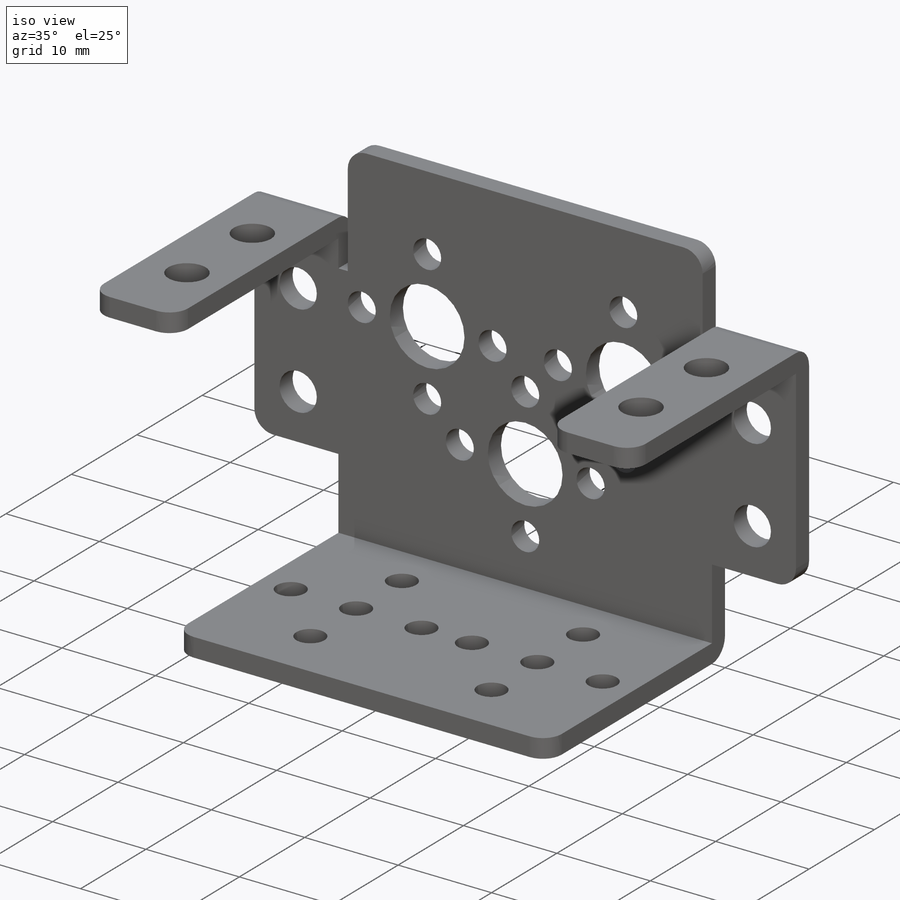
[diagram: iso view]
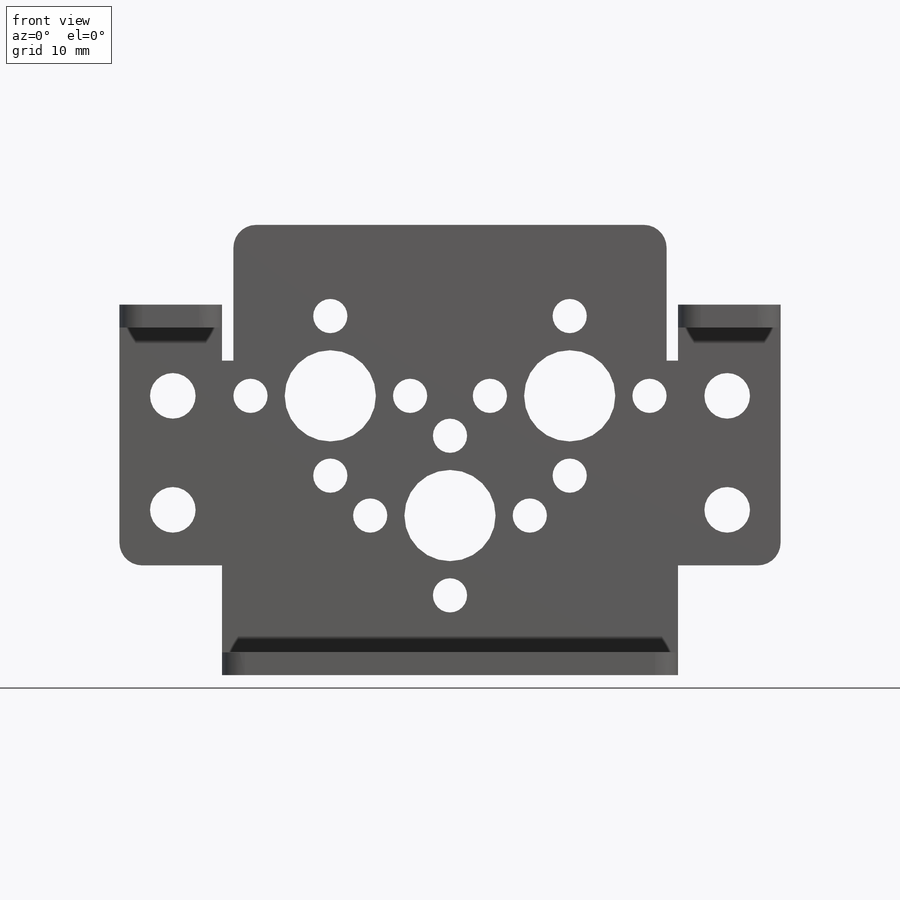
[diagram: front view]
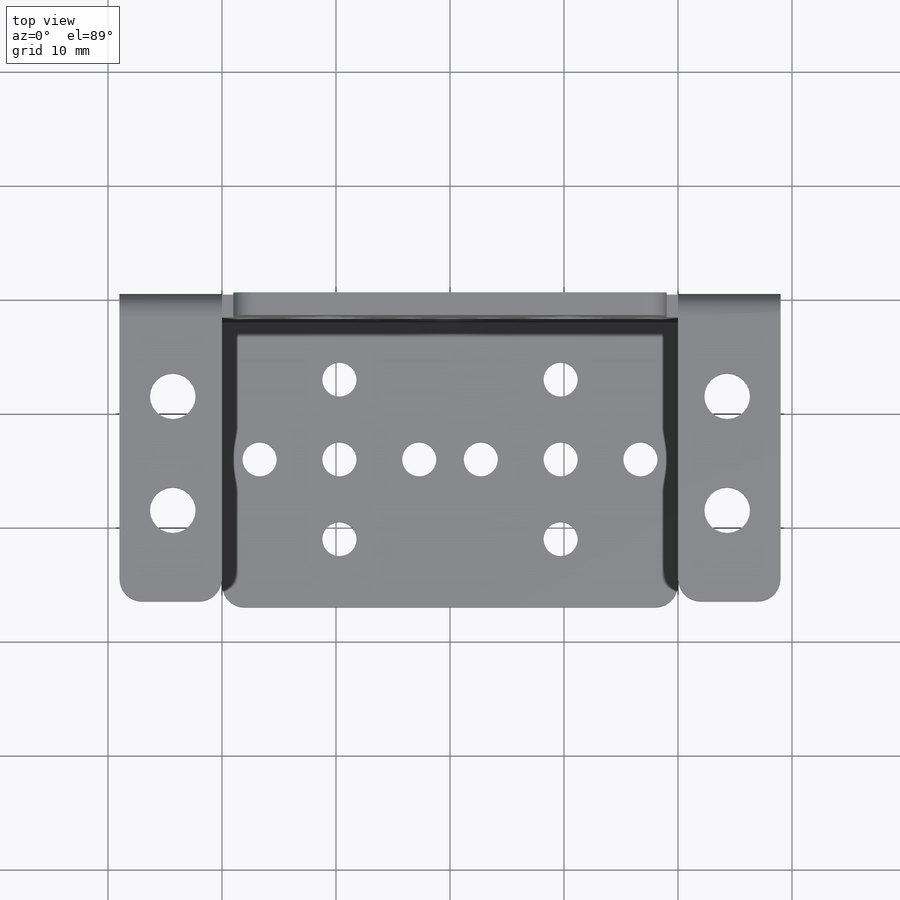
[diagram: top view]
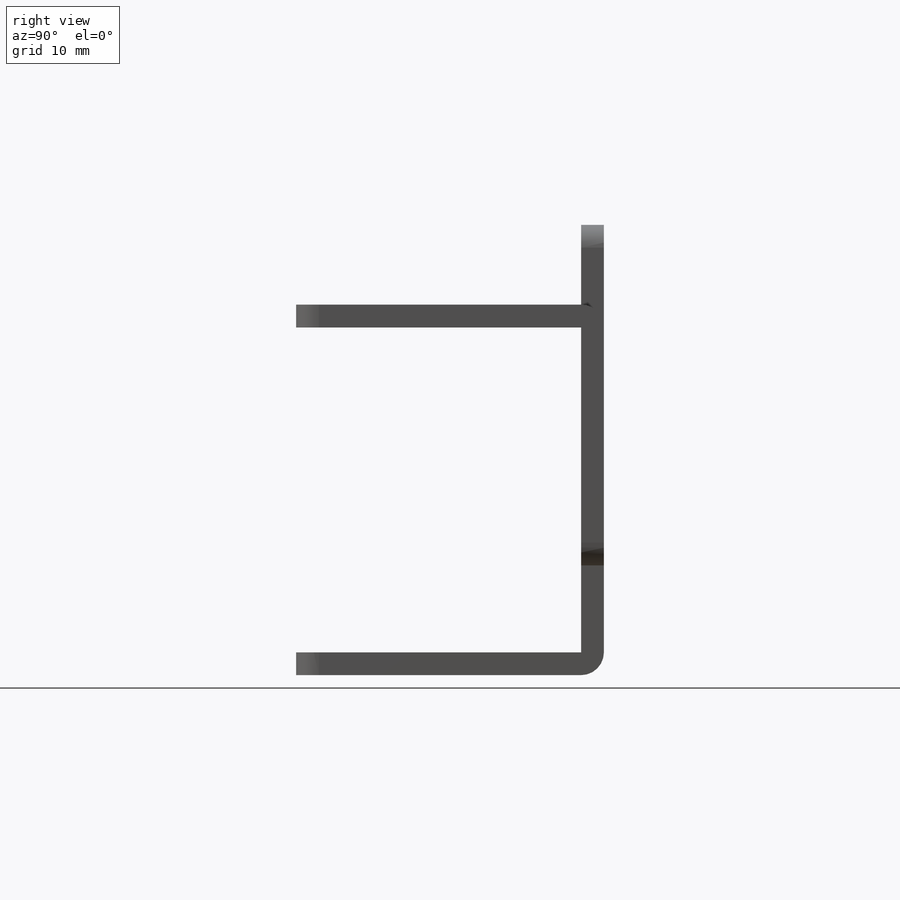
[diagram: right view]
SOLIDWORKS PART (.sldprt)
format: sldprt  version: not decoded by parser v0  size: 2,208,768 bytes
history: native  units: mm
features: plane x3, sketch x3, extrude x3, fillet x3, material x1 (+10 scaffold rows collapsed)
feature tree (23):
  scaffold x10  (default folders/planes/origin — collapsed)
  material  "材质 <未指定>"
  plane  "前视基准面"
  plane  "上视基准面"
  plane  "右视基准面"
  sketch  "草图1"  dims[c1.D5=8.0mm c1.D7=3.0mm c1.D11=14.0mm c1.D16=4.0mm c1.D18=~2.461215mm c1.D19=2.0mm c1.D20=2.0mm c1.D21=2.0mm c1.D22=2.0mm c1.D1=58.0mm c1.D2=37.5mm c1.D3=18.75mm c1.D4=29.0mm c1.D6=12.0mm c1.D9=22.5mm c1.D10=21.0mm c1.D12=19.0mm c1.D13=1.0mm c1.D14=28.5mm c1.D15=58.0mm c1.D17=12.5mm c2.D18=10.0mm c2.D15=48.63mm c2.D20=36.0mm c2.D8=4.0 c2.D11=4.0]
  extrude  "凸台-拉伸1"  Depth=2mm
  sketch  "草图2"  dims[c1.D4=3.0mm c1.D5=3.0mm c1.D6=3.0mm c1.D7=2.0mm c1.D8=2.0mm c1.D1=27.0mm c1.D2=20.0mm c1.D3=14.0mm c2.D5=10.3mm c2.D6=10.3mm c3.D6=4.0]
  extrude  "凸台-拉伸2"  Depth=2mm
  fillet  "圆角2"  Radius=2mm
  sketch  "草图3"  dims[D1=4.0mm D6=2.0mm D7=2.0mm D8=2.0mm D2=14.0mm D3=10.0mm D4=27.0mm D5=48.63mm]
  extrude  "凸台-拉伸3"  Depth=2mm
  fillet  "圆角3"  Radius=2mm
  fillet  "圆角4"  Radius=2mm
decode coverage: 9 of 9 modeling features carry decoded parameters
note: ~ marks probable driven/reference dimensions
note: suppression state not decoded; provenance and decode notes live in map.json
